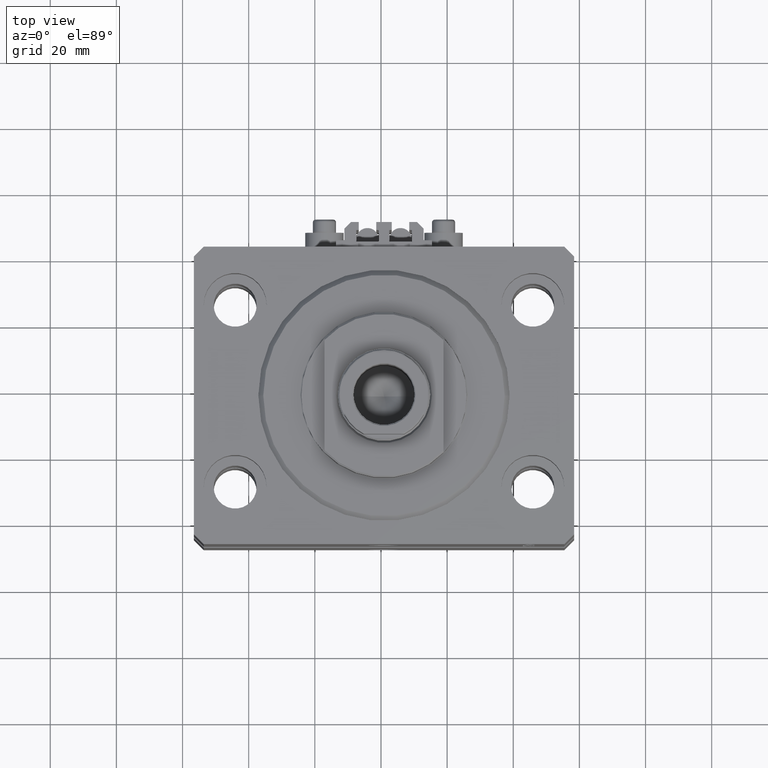
[diagram: clean part render]
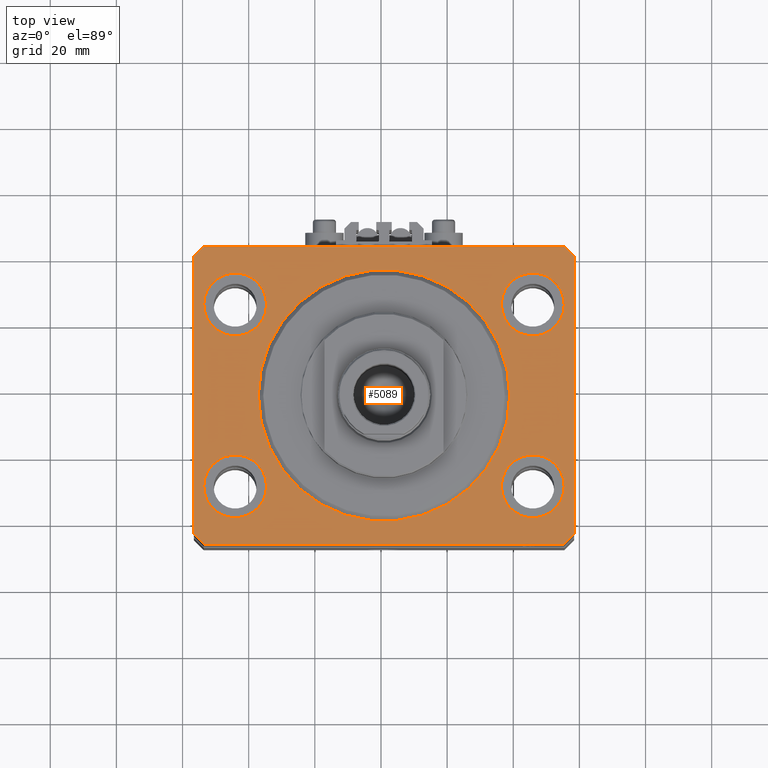
[diagram: same view with one face highlighted and labeled with its STEP entity id]
A machine part, top view. The second image highlights one B-rep face of the part: STEP entity #5089.
In plain terms, the highlighted planar face has unit normal (0, 0, 1).
Its self-contained STEP definition (entity closure, byte-faithful):
#246 = AXIS2_PLACEMENT_3D ( 'NONE', #21820, #10682, #30392 ) ;
#275 = CARTESIAN_POINT ( 'NONE',  ( -35.50000000000000000, 27.50000000000000355, 0.000000000000000000 ) ) ;
#822 = AXIS2_PLACEMENT_3D ( 'NONE', #6612, #32912, #6855 ) ;
#1053 = CARTESIAN_POINT ( 'NONE',  ( 57.50000000000000711, -41.99999999999998579, 0.000000000000000000 ) ) ;
#1135 = LINE ( 'NONE', #46172, #41355 ) ;
#1181 = CARTESIAN_POINT ( 'NONE',  ( 35.50000000000000000, -27.49999999999999645, 0.000000000000000000 ) ) ;
#1525 = ORIENTED_EDGE ( 'NONE', *, *, #9821, .F. ) ;
#1675 = ORIENTED_EDGE ( 'NONE', *, *, #6780, .F. ) ;
#1904 = CARTESIAN_POINT ( 'NONE',  ( 54.50000000000000000, 27.50000000000001776, 0.000000000000000000 ) ) ;
#2264 = ORIENTED_EDGE ( 'NONE', *, *, #27478, .F. ) ;
#2610 = FACE_BOUND ( 'NONE', #38311, .T. ) ;
#2612 = DIRECTION ( 'NONE',  ( 1.000000000000000000, 0.000000000000000000, 0.000000000000000000 ) ) ;
#2890 = EDGE_CURVE ( 'NONE', #16772, #36807, #1135, .T. ) ;
#3220 = VERTEX_POINT ( 'NONE', #4866 ) ;
#3610 = FACE_OUTER_BOUND ( 'NONE', #20099, .T. ) ;
#3612 = DIRECTION ( 'NONE',  ( 0.000000000000000000, 0.000000000000000000, 1.000000000000000000 ) ) ;
#3681 = CARTESIAN_POINT ( 'NONE',  ( 57.50000000000055422, 41.99999999999997868, 0.000000000000000000 ) ) ;
#3752 = DIRECTION ( 'NONE',  ( 1.000000000000000000, 0.000000000000000000, 0.000000000000000000 ) ) ;
#4796 = CARTESIAN_POINT ( 'NONE',  ( 57.50000000000000711, -41.99999999999998579, 0.000000000000000000 ) ) ;
#4866 = CARTESIAN_POINT ( 'NONE',  ( 54.50000000000000711, -44.99999999999998579, 0.000000000000000000 ) ) ;
#5089 = ADVANCED_FACE ( 'NONE', ( #29890, #49147, #2610, #7137, #18015, #3610 ), #26351, .T. ) ;
#5144 = EDGE_LOOP ( 'NONE', ( #18164, #1525 ) ) ;
#5202 = AXIS2_PLACEMENT_3D ( 'NONE', #9510, #33011, #39870 ) ;
#5360 = VERTEX_POINT ( 'NONE', #1053 ) ;
#5936 = EDGE_CURVE ( 'NONE', #49156, #3220, #16786, .T. ) ;
#6114 = ORIENTED_EDGE ( 'NONE', *, *, #28890, .T. ) ;
#6494 = CARTESIAN_POINT ( 'NONE',  ( 0.000000000000000000, 0.000000000000000000, 0.000000000000000000 ) ) ;
#6612 = CARTESIAN_POINT ( 'NONE',  ( 45.00000000000000000, -27.49999999999999645, 0.000000000000000000 ) ) ;
#6780 = EDGE_CURVE ( 'NONE', #19821, #20209, #32588, .T. ) ;
#6855 = DIRECTION ( 'NONE',  ( 1.000000000000000000, 0.000000000000000000, 0.000000000000000000 ) ) ;
#6876 = ORIENTED_EDGE ( 'NONE', *, *, #46748, .T. ) ;
#7137 = FACE_BOUND ( 'NONE', #35614, .T. ) ;
#7231 = DIRECTION ( 'NONE',  ( 0.7071067811865483499, 0.7071067811865466846, 0.000000000000000000 ) ) ;
#7305 = ORIENTED_EDGE ( 'NONE', *, *, #9035, .T. ) ;
#7542 = VECTOR ( 'NONE', #21071, 1000.000000000000000 ) ;
#7654 = CARTESIAN_POINT ( 'NONE',  ( -45.00000000000000000, 27.50000000000000355, 0.000000000000000000 ) ) ;
#8438 = VECTOR ( 'NONE', #8953, 999.9999999999998863 ) ;
#8953 = DIRECTION ( 'NONE',  ( -0.7071067811865376918, 0.7071067811865574537, 0.000000000000000000 ) ) ;
#9035 = EDGE_CURVE ( 'NONE', #45753, #18563, #30474, .T. ) ;
#9510 = CARTESIAN_POINT ( 'NONE',  ( 0.000000000000000000, 0.000000000000000000, 0.000000000000000000 ) ) ;
#9821 = EDGE_CURVE ( 'NONE', #11363, #42626, #27058, .T. ) ;
#9921 = CIRCLE ( 'NONE', #12363, 9.500000000000001776 ) ;
#10387 = ORIENTED_EDGE ( 'NONE', *, *, #2890, .T. ) ;
#10682 = DIRECTION ( 'NONE',  ( 0.000000000000000000, 0.000000000000000000, 1.000000000000000000 ) ) ;
#11080 = DIRECTION ( 'NONE',  ( 0.000000000000000000, 0.000000000000000000, 1.000000000000000000 ) ) ;
#11331 = CIRCLE ( 'NONE', #822, 9.500000000000001776 ) ;
#11363 = VERTEX_POINT ( 'NONE', #15125 ) ;
#11424 = EDGE_CURVE ( 'NONE', #49739, #22227, #33451, .T. ) ;
#11511 = DIRECTION ( 'NONE',  ( -2.478176394252581141E-16, -1.000000000000000000, 0.000000000000000000 ) ) ;
#11719 = CARTESIAN_POINT ( 'NONE',  ( -54.50000000000000711, -45.00000000000000000, 0.000000000000000000 ) ) ;
#11738 = CARTESIAN_POINT ( 'NONE',  ( -35.50000000000000000, -27.49999999999999645, 0.000000000000000000 ) ) ;
#12363 = AXIS2_PLACEMENT_3D ( 'NONE', #7654, #23076, #38514 ) ;
#12875 = CARTESIAN_POINT ( 'NONE',  ( 35.50000000000000000, 27.50000000000001776, 0.000000000000000000 ) ) ;
#13114 = CARTESIAN_POINT ( 'NONE',  ( -45.00000000000000000, -27.49999999999999645, 0.000000000000000000 ) ) ;
#13542 = DIRECTION ( 'NONE',  ( 1.000000000000000000, 0.000000000000000000, 0.000000000000000000 ) ) ;
#13546 = VERTEX_POINT ( 'NONE', #275 ) ;
#13979 = CARTESIAN_POINT ( 'NONE',  ( 45.00000000000000000, 27.50000000000001776, 0.000000000000000000 ) ) ;
#14822 = LINE ( 'NONE', #30487, #41598 ) ;
#15125 = CARTESIAN_POINT ( 'NONE',  ( -38.00000000000000000, 4.653657836759941941E-15, 0.000000000000000000 ) ) ;
#15272 = VERTEX_POINT ( 'NONE', #1181 ) ;
#16163 = DIRECTION ( 'NONE',  ( 6.443258625056715108E-15, 1.000000000000000000, 0.000000000000000000 ) ) ;
#16368 = ORIENTED_EDGE ( 'NONE', *, *, #47024, .F. ) ;
#16772 = VERTEX_POINT ( 'NONE', #30892 ) ;
#16786 = LINE ( 'NONE', #29404, #7542 ) ;
#18015 = FACE_BOUND ( 'NONE', #5144, .T. ) ;
#18073 = AXIS2_PLACEMENT_3D ( 'NONE', #39636, #19400, #47229 ) ;
#18164 = ORIENTED_EDGE ( 'NONE', *, *, #32889, .F. ) ;
#18445 = LINE ( 'NONE', #45521, #46346 ) ;
#18563 = VERTEX_POINT ( 'NONE', #22667 ) ;
#18713 = ORIENTED_EDGE ( 'NONE', *, *, #33695, .T. ) ;
#18958 = VERTEX_POINT ( 'NONE', #40483 ) ;
#19318 = AXIS2_PLACEMENT_3D ( 'NONE', #13979, #3612, #2612 ) ;
#19400 = DIRECTION ( 'NONE',  ( 0.000000000000000000, 0.000000000000000000, 1.000000000000000000 ) ) ;
#19821 = VERTEX_POINT ( 'NONE', #11738 ) ;
#19966 = EDGE_CURVE ( 'NONE', #22227, #49739, #41146, .T. ) ;
#20072 = EDGE_LOOP ( 'NONE', ( #1675, #31831 ) ) ;
#20076 = VERTEX_POINT ( 'NONE', #27350 ) ;
#20099 = EDGE_LOOP ( 'NONE', ( #6114, #6876, #10387, #47399, #49326, #18713, #20820, #7305 ) ) ;
#20209 = VERTEX_POINT ( 'NONE', #32380 ) ;
#20342 = CARTESIAN_POINT ( 'NONE',  ( -54.49999999999999289, 45.00000000000000000, 0.000000000000000000 ) ) ;
#20820 = ORIENTED_EDGE ( 'NONE', *, *, #46036, .T. ) ;
#21071 = DIRECTION ( 'NONE',  ( 1.000000000000000000, 1.273191542001326317E-16, 0.000000000000000000 ) ) ;
#21465 = DIRECTION ( 'NONE',  ( 0.000000000000000000, 0.000000000000000000, 1.000000000000000000 ) ) ;
#21719 = CARTESIAN_POINT ( 'NONE',  ( 54.50000000000000000, -27.49999999999999645, 0.000000000000000000 ) ) ;
#21820 = CARTESIAN_POINT ( 'NONE',  ( 0.000000000000000000, 0.000000000000000000, 0.000000000000000000 ) ) ;
#21834 = LINE ( 'NONE', #22330, #29400 ) ;
#22227 = VERTEX_POINT ( 'NONE', #12875 ) ;
#22330 = CARTESIAN_POINT ( 'NONE',  ( 54.50000000000058975, 45.00000000000002842, 0.000000000000000000 ) ) ;
#22485 = DIRECTION ( 'NONE',  ( 0.7071067811865491270, -0.7071067811865459074, 0.000000000000000000 ) ) ;
#22667 = CARTESIAN_POINT ( 'NONE',  ( 54.50000000000058975, 45.00000000000002842, 0.000000000000000000 ) ) ;
#23076 = DIRECTION ( 'NONE',  ( 0.000000000000000000, 0.000000000000000000, 1.000000000000000000 ) ) ;
#24116 = VECTOR ( 'NONE', #16163, 1000.000000000000000 ) ;
#25337 = AXIS2_PLACEMENT_3D ( 'NONE', #13114, #21465, #48285 ) ;
#25425 = CARTESIAN_POINT ( 'NONE',  ( -45.00000000000000000, 27.50000000000000355, 0.000000000000000000 ) ) ;
#26125 = DIRECTION ( 'NONE',  ( -1.000000000000000000, -2.546383084002639322E-16, 0.000000000000000000 ) ) ;
#26351 = PLANE ( 'NONE',  #246 ) ;
#27058 = CIRCLE ( 'NONE', #42443, 38.00000000000000000 ) ;
#27350 = CARTESIAN_POINT ( 'NONE',  ( -54.50000000000000000, 27.50000000000000355, 0.000000000000000000 ) ) ;
#27478 = EDGE_CURVE ( 'NONE', #20076, #13546, #44752, .T. ) ;
#28219 = EDGE_CURVE ( 'NONE', #15272, #36879, #41524, .T. ) ;
#28890 = EDGE_CURVE ( 'NONE', #18563, #18958, #21834, .T. ) ;
#28994 = EDGE_CURVE ( 'NONE', #13546, #20076, #9921, .T. ) ;
#29400 = VECTOR ( 'NONE', #26125, 1000.000000000000000 ) ;
#29404 = CARTESIAN_POINT ( 'NONE',  ( -54.50000000000000711, -45.00000000000000000, 0.000000000000000000 ) ) ;
#29494 = DIRECTION ( 'NONE',  ( 1.000000000000000000, 0.000000000000000000, 0.000000000000000000 ) ) ;
#29890 = FACE_BOUND ( 'NONE', #20072, .T. ) ;
#30392 = DIRECTION ( 'NONE',  ( 1.000000000000000000, 0.000000000000000000, -0.000000000000000000 ) ) ;
#30474 = LINE ( 'NONE', #45936, #8438 ) ;
#30487 = CARTESIAN_POINT ( 'NONE',  ( 54.50000000000000711, -44.99999999999998579, 0.000000000000000000 ) ) ;
#30892 = CARTESIAN_POINT ( 'NONE',  ( -57.49999999999998579, 42.00000000000000711, 0.000000000000000000 ) ) ;
#31643 = EDGE_CURVE ( 'NONE', #36807, #49156, #18445, .T. ) ;
#31815 = CIRCLE ( 'NONE', #5202, 38.00000000000000000 ) ;
#31831 = ORIENTED_EDGE ( 'NONE', *, *, #49906, .F. ) ;
#32380 = CARTESIAN_POINT ( 'NONE',  ( -54.50000000000000000, -27.49999999999999645, 0.000000000000000000 ) ) ;
#32588 = CIRCLE ( 'NONE', #25337, 9.500000000000001776 ) ;
#32889 = EDGE_CURVE ( 'NONE', #42626, #11363, #31815, .T. ) ;
#32912 = DIRECTION ( 'NONE',  ( 0.000000000000000000, 0.000000000000000000, 1.000000000000000000 ) ) ;
#33011 = DIRECTION ( 'NONE',  ( 0.000000000000000000, 0.000000000000000000, 1.000000000000000000 ) ) ;
#33192 = CIRCLE ( 'NONE', #42212, 9.500000000000001776 ) ;
#33451 = CIRCLE ( 'NONE', #41562, 9.500000000000001776 ) ;
#33695 = EDGE_CURVE ( 'NONE', #3220, #5360, #14822, .T. ) ;
#35614 = EDGE_LOOP ( 'NONE', ( #38496, #2264 ) ) ;
#35765 = DIRECTION ( 'NONE',  ( -0.7071067811865483499, -0.7071067811865466846, 0.000000000000000000 ) ) ;
#36641 = AXIS2_PLACEMENT_3D ( 'NONE', #25425, #48202, #13542 ) ;
#36807 = VERTEX_POINT ( 'NONE', #43755 ) ;
#36879 = VERTEX_POINT ( 'NONE', #21719 ) ;
#38311 = EDGE_LOOP ( 'NONE', ( #47048, #47623 ) ) ;
#38496 = ORIENTED_EDGE ( 'NONE', *, *, #28994, .F. ) ;
#38514 = DIRECTION ( 'NONE',  ( 1.000000000000000000, 0.000000000000000000, 0.000000000000000000 ) ) ;
#38544 = DIRECTION ( 'NONE',  ( 1.000000000000000000, 0.000000000000000000, 0.000000000000000000 ) ) ;
#39451 = LINE ( 'NONE', #4796, #24116 ) ;
#39636 = CARTESIAN_POINT ( 'NONE',  ( 45.00000000000000000, -27.49999999999999645, 0.000000000000000000 ) ) ;
#39870 = DIRECTION ( 'NONE',  ( 1.000000000000000000, 0.000000000000000000, 0.000000000000000000 ) ) ;
#40483 = CARTESIAN_POINT ( 'NONE',  ( -54.49999999999999289, 45.00000000000000000, 0.000000000000000000 ) ) ;
#41146 = CIRCLE ( 'NONE', #19318, 9.500000000000001776 ) ;
#41355 = VECTOR ( 'NONE', #11511, 1000.000000000000000 ) ;
#41524 = CIRCLE ( 'NONE', #18073, 9.500000000000001776 ) ;
#41562 = AXIS2_PLACEMENT_3D ( 'NONE', #41954, #11080, #3752 ) ;
#41598 = VECTOR ( 'NONE', #7231, 1000.000000000000000 ) ;
#41858 = CARTESIAN_POINT ( 'NONE',  ( -45.00000000000000000, -27.49999999999999645, 0.000000000000000000 ) ) ;
#41954 = CARTESIAN_POINT ( 'NONE',  ( 45.00000000000000000, 27.50000000000001776, 0.000000000000000000 ) ) ;
#42212 = AXIS2_PLACEMENT_3D ( 'NONE', #41858, #46634, #38544 ) ;
#42443 = AXIS2_PLACEMENT_3D ( 'NONE', #6494, #48732, #29494 ) ;
#42626 = VERTEX_POINT ( 'NONE', #44564 ) ;
#43002 = ORIENTED_EDGE ( 'NONE', *, *, #28219, .F. ) ;
#43694 = EDGE_LOOP ( 'NONE', ( #16368, #43002 ) ) ;
#43755 = CARTESIAN_POINT ( 'NONE',  ( -57.50000000000000711, -42.00000000000000711, 0.000000000000000000 ) ) ;
#44564 = CARTESIAN_POINT ( 'NONE',  ( 38.00000000000000000, 0.000000000000000000, 0.000000000000000000 ) ) ;
#44752 = CIRCLE ( 'NONE', #36641, 9.500000000000001776 ) ;
#45521 = CARTESIAN_POINT ( 'NONE',  ( -57.50000000000000711, -42.00000000000000711, 0.000000000000000000 ) ) ;
#45753 = VERTEX_POINT ( 'NONE', #3681 ) ;
#45936 = CARTESIAN_POINT ( 'NONE',  ( 57.50000000000055422, 41.99999999999997868, 0.000000000000000000 ) ) ;
#46036 = EDGE_CURVE ( 'NONE', #5360, #45753, #39451, .T. ) ;
#46172 = CARTESIAN_POINT ( 'NONE',  ( -57.49999999999998579, 42.00000000000000711, 0.000000000000000000 ) ) ;
#46346 = VECTOR ( 'NONE', #22485, 1000.000000000000114 ) ;
#46634 = DIRECTION ( 'NONE',  ( 0.000000000000000000, 0.000000000000000000, 1.000000000000000000 ) ) ;
#46748 = EDGE_CURVE ( 'NONE', #18958, #16772, #47412, .T. ) ;
#47024 = EDGE_CURVE ( 'NONE', #36879, #15272, #11331, .T. ) ;
#47048 = ORIENTED_EDGE ( 'NONE', *, *, #11424, .F. ) ;
#47229 = DIRECTION ( 'NONE',  ( 1.000000000000000000, 0.000000000000000000, 0.000000000000000000 ) ) ;
#47399 = ORIENTED_EDGE ( 'NONE', *, *, #31643, .T. ) ;
#47412 = LINE ( 'NONE', #20342, #47694 ) ;
#47623 = ORIENTED_EDGE ( 'NONE', *, *, #19966, .F. ) ;
#47694 = VECTOR ( 'NONE', #35765, 1000.000000000000000 ) ;
#48202 = DIRECTION ( 'NONE',  ( 0.000000000000000000, 0.000000000000000000, 1.000000000000000000 ) ) ;
#48285 = DIRECTION ( 'NONE',  ( 1.000000000000000000, 0.000000000000000000, 0.000000000000000000 ) ) ;
#48732 = DIRECTION ( 'NONE',  ( 0.000000000000000000, 0.000000000000000000, 1.000000000000000000 ) ) ;
#49147 = FACE_BOUND ( 'NONE', #43694, .T. ) ;
#49156 = VERTEX_POINT ( 'NONE', #11719 ) ;
#49326 = ORIENTED_EDGE ( 'NONE', *, *, #5936, .T. ) ;
#49739 = VERTEX_POINT ( 'NONE', #1904 ) ;
#49906 = EDGE_CURVE ( 'NONE', #20209, #19821, #33192, .T. ) ;